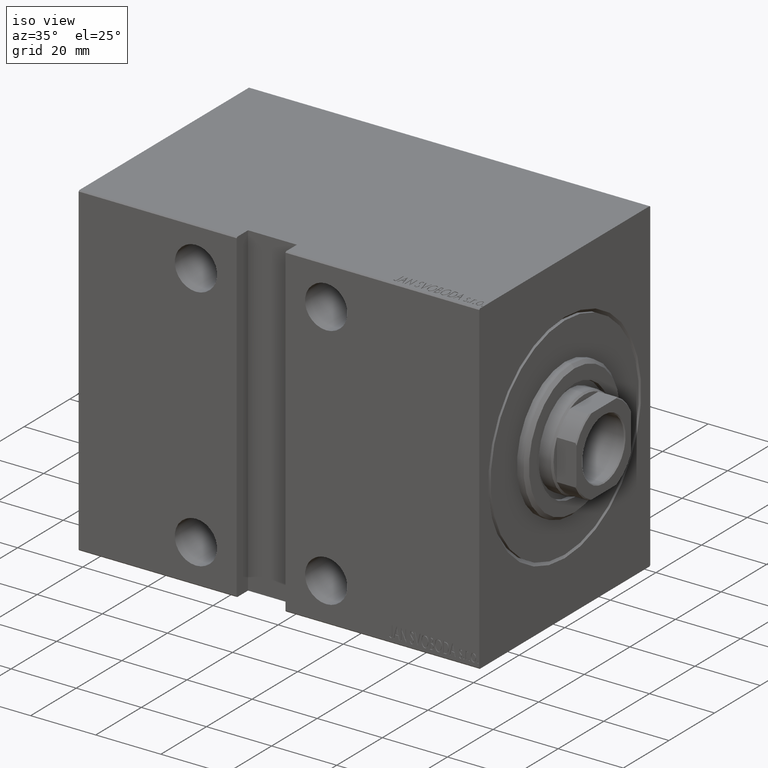
[diagram: clean part render]
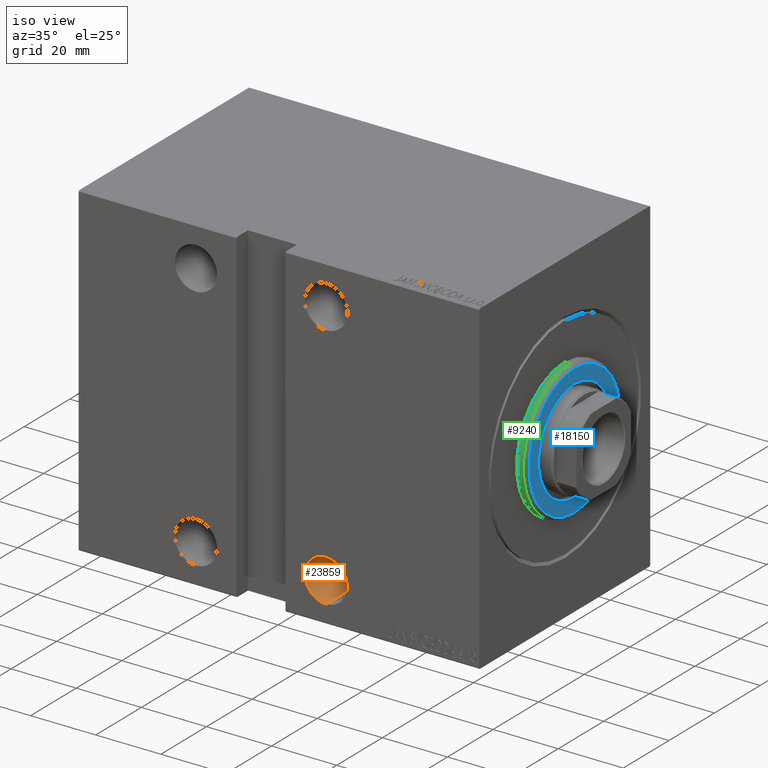
[diagram: same view with three faces highlighted in distinct colors, each labeled with its STEP entity id]
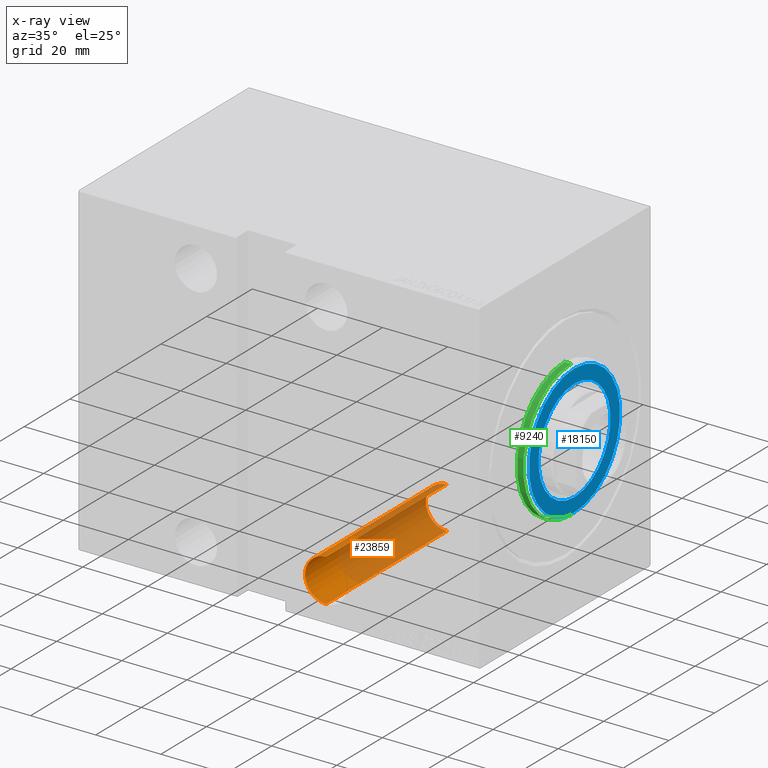
[diagram: x-ray of the same camera — body ghosted, the three highlighted faces saturated]
A machine part, iso view with three faces highlighted in distinct colors.
The next image is the same camera in x-ray (body ghosted, the three faces saturated) — at least one of them is partly hidden behind the body in this view.
Their STEP definitions:

[orange] entity #23859 — the highlighted cylindrical surface (edge-blend (fillet) strip) has radius 6.5 mm, axis along (0, -1, 0).
#629 = DIRECTION ( 'NONE',  ( 0.000000000000000000, -1.000000000000000000, -1.387778780781445182E-16 ) ) ;
#846 = DIRECTION ( 'NONE',  ( 0.000000000000000000, 0.000000000000000000, -1.000000000000000000 ) ) ;
#1311 = CARTESIAN_POINT ( 'NONE',  ( 47.00000000000000711, -37.50000000000002132, -38.00000000000000711 ) ) ;
#2138 = CARTESIAN_POINT ( 'NONE',  ( 47.00000000000000711, 37.50000000000000711, -44.50000000000000000 ) ) ;
#2169 = FACE_OUTER_BOUND ( 'NONE', #31172, .T. ) ;
#2991 = DIRECTION ( 'NONE',  ( -0.000000000000000000, 1.000000000000000000, 1.261617073437677752E-16 ) ) ;
#4308 = VERTEX_POINT ( 'NONE', #37284 ) ;
#4811 = CARTESIAN_POINT ( 'NONE',  ( 47.00000000000000711, -37.50000000000002132, -44.50000000000000711 ) ) ;
#4930 = VECTOR ( 'NONE', #37308, 1000.000000000000000 ) ;
#7138 = ORIENTED_EDGE ( 'NONE', *, *, #14397, .F. ) ;
#8068 = DIRECTION ( 'NONE',  ( -0.000000000000000000, 1.000000000000000000, 1.261617073437677752E-16 ) ) ;
#8102 = AXIS2_PLACEMENT_3D ( 'NONE', #1311, #8068, #11566 ) ;
#9508 = ORIENTED_EDGE ( 'NONE', *, *, #38199, .F. ) ;
#9846 = VECTOR ( 'NONE', #2991, 1000.000000000000000 ) ;
#11016 = VERTEX_POINT ( 'NONE', #30758 ) ;
#11221 = CIRCLE ( 'NONE', #16789, 6.499999999999999112 ) ;
#11566 = DIRECTION ( 'NONE',  ( 0.000000000000000000, 0.000000000000000000, 1.000000000000000000 ) ) ;
#13017 = CARTESIAN_POINT ( 'NONE',  ( 47.00000000000000711, -37.50000000000002132, -31.50000000000000711 ) ) ;
#13415 = DIRECTION ( 'NONE',  ( 0.000000000000000000, 0.000000000000000000, -1.000000000000000000 ) ) ;
#14397 = EDGE_CURVE ( 'NONE', #40214, #18181, #24210, .T. ) ;
#14604 = AXIS2_PLACEMENT_3D ( 'NONE', #17206, #629, #846 ) ;
#16789 = AXIS2_PLACEMENT_3D ( 'NONE', #36527, #33242, #13415 ) ;
#17206 = CARTESIAN_POINT ( 'NONE',  ( 47.00000000000000711, 37.50000000000000711, -38.00000000000000000 ) ) ;
#18181 = VERTEX_POINT ( 'NONE', #2138 ) ;
#18612 = ORIENTED_EDGE ( 'NONE', *, *, #41976, .T. ) ;
#23859 = ADVANCED_FACE ( 'NONE', ( #2169 ), #38385, .F. ) ;
#24210 = LINE ( 'NONE', #4811, #4930 ) ;
#25741 = CIRCLE ( 'NONE', #14604, 6.499999999999999112 ) ;
#29293 = ORIENTED_EDGE ( 'NONE', *, *, #40757, .F. ) ;
#29588 = LINE ( 'NONE', #13017, #9846 ) ;
#30758 = CARTESIAN_POINT ( 'NONE',  ( 47.00000000000000711, -15.50000000000000000, -31.50000000000000711 ) ) ;
#31172 = EDGE_LOOP ( 'NONE', ( #7138, #29293, #18612, #9508 ) ) ;
#33242 = DIRECTION ( 'NONE',  ( -0.000000000000000000, 1.000000000000000000, -0.000000000000000000 ) ) ;
#36527 = CARTESIAN_POINT ( 'NONE',  ( 47.00000000000000711, -15.50000000000000000, -38.00000000000000711 ) ) ;
#37276 = CARTESIAN_POINT ( 'NONE',  ( 47.00000000000000711, -15.50000000000000000, -44.50000000000000711 ) ) ;
#37284 = CARTESIAN_POINT ( 'NONE',  ( 47.00000000000000711, 37.50000000000000711, -31.50000000000000000 ) ) ;
#37308 = DIRECTION ( 'NONE',  ( -0.000000000000000000, 1.000000000000000000, 1.261617073437677752E-16 ) ) ;
#38199 = EDGE_CURVE ( 'NONE', #18181, #4308, #25741, .T. ) ;
#38385 = CYLINDRICAL_SURFACE ( 'NONE', #8102, 6.499999999999999112 ) ;
#40214 = VERTEX_POINT ( 'NONE', #37276 ) ;
#40757 = EDGE_CURVE ( 'NONE', #11016, #40214, #11221, .T. ) ;
#41976 = EDGE_CURVE ( 'NONE', #11016, #4308, #29588, .T. ) ;

[blue] entity #18150 — the highlighted planar face has unit normal (1, 0, 0).
#1255 = AXIS2_PLACEMENT_3D ( 'NONE', #24406, #31809, #15248 ) ;
#1855 = EDGE_CURVE ( 'NONE', #6554, #8387, #15175, .T. ) ;
#2522 = CIRCLE ( 'NONE', #15757, 20.00000000000001776 ) ;
#4347 = CARTESIAN_POINT ( 'NONE',  ( 3.000000000000000000, 0.000000000000000000, 15.75000000000000000 ) ) ;
#5209 = CARTESIAN_POINT ( 'NONE',  ( 3.000000000000000000, 2.510525938252075270E-15, -20.00000000000001776 ) ) ;
#5839 = PLANE ( 'NONE',  #33560 ) ;
#6554 = VERTEX_POINT ( 'NONE', #5209 ) ;
#6571 = EDGE_CURVE ( 'NONE', #26950, #40228, #37464, .T. ) ;
#6751 = ORIENTED_EDGE ( 'NONE', *, *, #24503, .T. ) ;
#7151 = CARTESIAN_POINT ( 'NONE',  ( 3.000000000000000000, 0.000000000000000000, 0.000000000000000000 ) ) ;
#8359 = CIRCLE ( 'NONE', #12564, 15.75000000000000000 ) ;
#8387 = VERTEX_POINT ( 'NONE', #32227 ) ;
#8540 = EDGE_LOOP ( 'NONE', ( #15560, #13251 ) ) ;
#8909 = DIRECTION ( 'NONE',  ( 1.000000000000000000, -0.000000000000000000, 0.000000000000000000 ) ) ;
#12564 = AXIS2_PLACEMENT_3D ( 'NONE', #7151, #37247, #34196 ) ;
#12614 = CARTESIAN_POINT ( 'NONE',  ( 3.000000000000000000, 0.000000000000000000, 0.000000000000000000 ) ) ;
#12647 = EDGE_CURVE ( 'NONE', #40228, #26950, #8359, .T. ) ;
#13251 = ORIENTED_EDGE ( 'NONE', *, *, #6571, .T. ) ;
#15175 = CIRCLE ( 'NONE', #22142, 20.00000000000001776 ) ;
#15248 = DIRECTION ( 'NONE',  ( 0.000000000000000000, 0.000000000000000000, -1.000000000000000000 ) ) ;
#15560 = ORIENTED_EDGE ( 'NONE', *, *, #12647, .T. ) ;
#15757 = AXIS2_PLACEMENT_3D ( 'NONE', #24537, #34141, #38065 ) ;
#17749 = DIRECTION ( 'NONE',  ( 1.000000000000000000, -0.000000000000000000, 0.000000000000000000 ) ) ;
#18150 = ADVANCED_FACE ( 'NONE', ( #35504, #22417 ), #5839, .T. ) ;
#22142 = AXIS2_PLACEMENT_3D ( 'NONE', #34742, #17749, #31040 ) ;
#22417 = FACE_BOUND ( 'NONE', #8540, .T. ) ;
#24406 = CARTESIAN_POINT ( 'NONE',  ( 3.000000000000000000, 0.000000000000000000, 0.000000000000000000 ) ) ;
#24503 = EDGE_CURVE ( 'NONE', #8387, #6554, #2522, .T. ) ;
#24537 = CARTESIAN_POINT ( 'NONE',  ( 3.000000000000000000, 0.000000000000000000, 0.000000000000000000 ) ) ;
#25038 = DIRECTION ( 'NONE',  ( 0.000000000000000000, 0.000000000000000000, -1.000000000000000000 ) ) ;
#26950 = VERTEX_POINT ( 'NONE', #43053 ) ;
#31040 = DIRECTION ( 'NONE',  ( 0.000000000000000000, 0.000000000000000000, -1.000000000000000000 ) ) ;
#31809 = DIRECTION ( 'NONE',  ( -1.000000000000000000, 0.000000000000000000, -0.000000000000000000 ) ) ;
#32227 = CARTESIAN_POINT ( 'NONE',  ( 3.000000000000000000, 0.000000000000000000, 20.00000000000001776 ) ) ;
#32291 = EDGE_LOOP ( 'NONE', ( #6751, #33580 ) ) ;
#33560 = AXIS2_PLACEMENT_3D ( 'NONE', #12614, #8909, #25038 ) ;
#33580 = ORIENTED_EDGE ( 'NONE', *, *, #1855, .T. ) ;
#34141 = DIRECTION ( 'NONE',  ( 1.000000000000000000, -0.000000000000000000, 0.000000000000000000 ) ) ;
#34196 = DIRECTION ( 'NONE',  ( 0.000000000000000000, 0.000000000000000000, -1.000000000000000000 ) ) ;
#34742 = CARTESIAN_POINT ( 'NONE',  ( 3.000000000000000000, 0.000000000000000000, 0.000000000000000000 ) ) ;
#35504 = FACE_OUTER_BOUND ( 'NONE', #32291, .T. ) ;
#37247 = DIRECTION ( 'NONE',  ( -1.000000000000000000, 0.000000000000000000, -0.000000000000000000 ) ) ;
#37464 = CIRCLE ( 'NONE', #1255, 15.75000000000000000 ) ;
#38065 = DIRECTION ( 'NONE',  ( 0.000000000000000000, 0.000000000000000000, -1.000000000000000000 ) ) ;
#40228 = VERTEX_POINT ( 'NONE', #4347 ) ;
#43053 = CARTESIAN_POINT ( 'NONE',  ( 3.000000000000000000, 1.928818708657080950E-15, -15.75000000000000000 ) ) ;

[green] entity #9240 — the highlighted cylindrical surface (partial cylindrical patch) has radius 21 mm, axis along (-1, -0, -0).
#941 = DIRECTION ( 'NONE',  ( -1.000000000000000000, -0.000000000000000000, -0.000000000000000000 ) ) ;
#1153 = LINE ( 'NONE', #5275, #20837 ) ;
#1943 = VERTEX_POINT ( 'NONE', #8788 ) ;
#2935 = CIRCLE ( 'NONE', #23101, 21.00000000000000000 ) ;
#3303 = DIRECTION ( 'NONE',  ( -1.000000000000000000, 0.000000000000000000, 0.000000000000000000 ) ) ;
#3773 = CARTESIAN_POINT ( 'NONE',  ( 1.999999999999995781, 2.571758278209441661E-15, -21.00000000000000000 ) ) ;
#5033 = DIRECTION ( 'NONE',  ( 0.000000000000000000, 0.000000000000000000, -1.000000000000000000 ) ) ;
#5247 = DIRECTION ( 'NONE',  ( 0.000000000000000000, 0.000000000000000000, 1.000000000000000000 ) ) ;
#5275 = CARTESIAN_POINT ( 'NONE',  ( 3.000000000000000000, 2.571758278209441661E-15, -21.00000000000000000 ) ) ;
#8744 = FACE_OUTER_BOUND ( 'NONE', #41321, .T. ) ;
#8788 = CARTESIAN_POINT ( 'NONE',  ( 0.000000000000000000, 0.000000000000000000, 21.00000000000000000 ) ) ;
#8920 = ORIENTED_EDGE ( 'NONE', *, *, #18413, .T. ) ;
#9240 = ADVANCED_FACE ( 'NONE', ( #8744 ), #34920, .T. ) ;
#9849 = AXIS2_PLACEMENT_3D ( 'NONE', #30340, #3303, #16842 ) ;
#11375 = DIRECTION ( 'NONE',  ( 1.000000000000000000, -0.000000000000000000, 0.000000000000000000 ) ) ;
#12348 = VERTEX_POINT ( 'NONE', #41755 ) ;
#14077 = VECTOR ( 'NONE', #32971, 1000.000000000000000 ) ;
#16842 = DIRECTION ( 'NONE',  ( 0.000000000000000000, 0.000000000000000000, -1.000000000000000000 ) ) ;
#17565 = EDGE_CURVE ( 'NONE', #35612, #12348, #28651, .T. ) ;
#17759 = EDGE_CURVE ( 'NONE', #1943, #33641, #2935, .T. ) ;
#18413 = EDGE_CURVE ( 'NONE', #12348, #1943, #35387, .T. ) ;
#19620 = ORIENTED_EDGE ( 'NONE', *, *, #17565, .T. ) ;
#20837 = VECTOR ( 'NONE', #941, 1000.000000000000000 ) ;
#23101 = AXIS2_PLACEMENT_3D ( 'NONE', #41036, #11375, #5033 ) ;
#25308 = DIRECTION ( 'NONE',  ( -1.000000000000000000, -0.000000000000000000, -0.000000000000000000 ) ) ;
#25943 = CARTESIAN_POINT ( 'NONE',  ( 0.000000000000000000, 2.571758278209441661E-15, -21.00000000000000000 ) ) ;
#28597 = CARTESIAN_POINT ( 'NONE',  ( 3.000000000000000000, 0.000000000000000000, 0.000000000000000000 ) ) ;
#28651 = CIRCLE ( 'NONE', #9849, 21.00000000000000000 ) ;
#28853 = CARTESIAN_POINT ( 'NONE',  ( 3.000000000000000000, 0.000000000000000000, 21.00000000000000000 ) ) ;
#29146 = AXIS2_PLACEMENT_3D ( 'NONE', #28597, #25308, #5247 ) ;
#30340 = CARTESIAN_POINT ( 'NONE',  ( 1.999999999999995781, 0.000000000000000000, 0.000000000000000000 ) ) ;
#32971 = DIRECTION ( 'NONE',  ( -1.000000000000000000, -0.000000000000000000, -0.000000000000000000 ) ) ;
#33641 = VERTEX_POINT ( 'NONE', #25943 ) ;
#34920 = CYLINDRICAL_SURFACE ( 'NONE', #29146, 21.00000000000000000 ) ;
#35387 = LINE ( 'NONE', #28853, #14077 ) ;
#35612 = VERTEX_POINT ( 'NONE', #3773 ) ;
#36512 = EDGE_CURVE ( 'NONE', #35612, #33641, #1153, .T. ) ;
#41036 = CARTESIAN_POINT ( 'NONE',  ( 0.000000000000000000, 0.000000000000000000, 0.000000000000000000 ) ) ;
#41321 = EDGE_LOOP ( 'NONE', ( #41705, #19620, #8920, #42179 ) ) ;
#41705 = ORIENTED_EDGE ( 'NONE', *, *, #36512, .F. ) ;
#41755 = CARTESIAN_POINT ( 'NONE',  ( 1.999999999999995781, 0.000000000000000000, 21.00000000000000000 ) ) ;
#42179 = ORIENTED_EDGE ( 'NONE', *, *, #17759, .T. ) ;